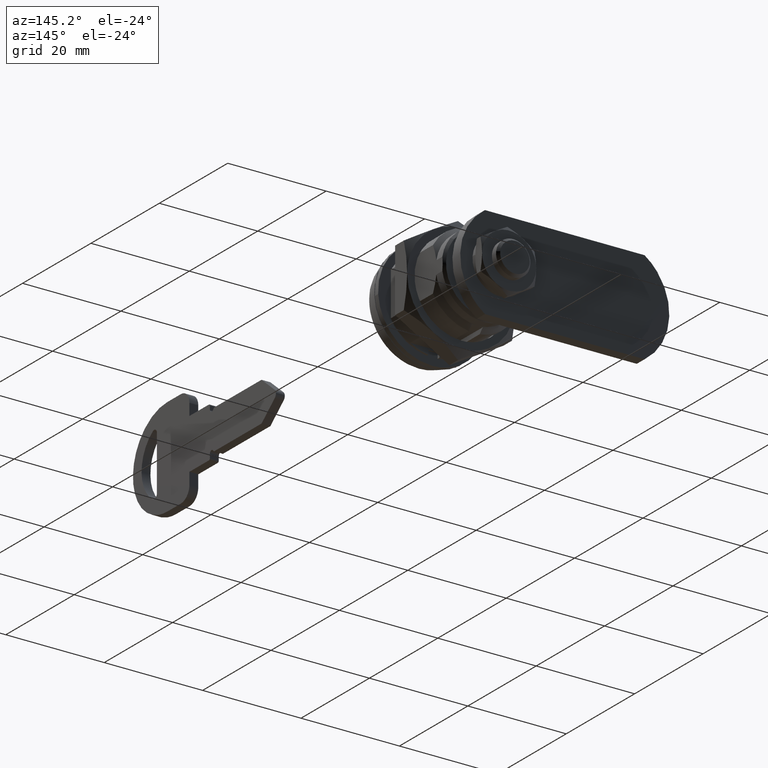
[diagram: clean part render]
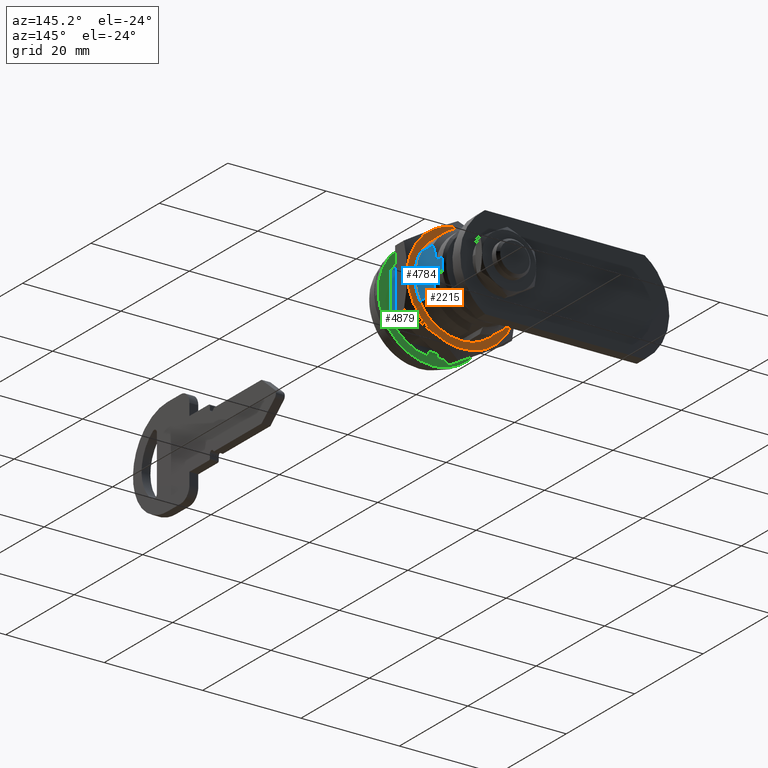
[diagram: same view with three faces highlighted in distinct colors, each labeled with its STEP entity id]
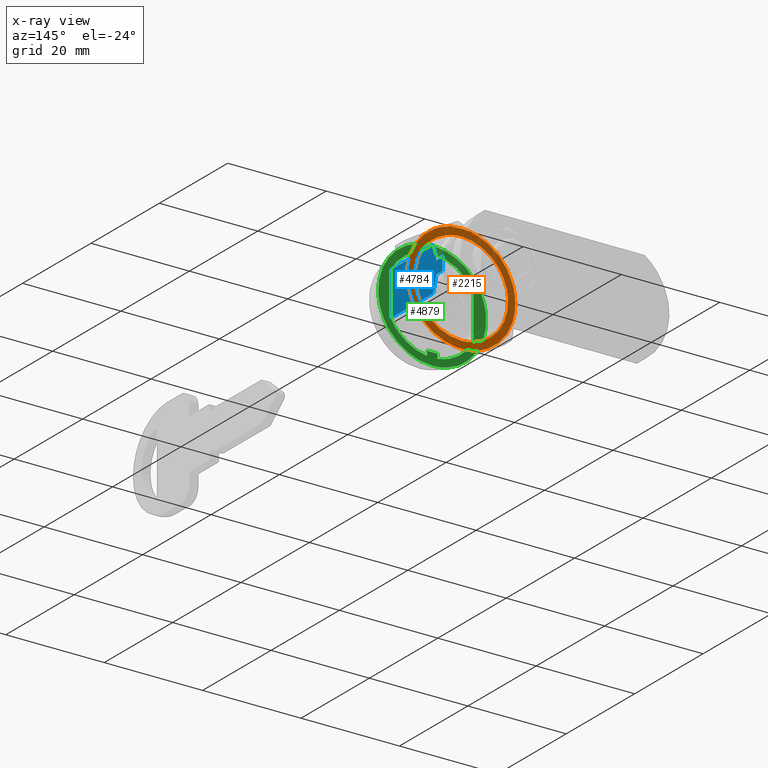
[diagram: x-ray of the same camera — body ghosted, the three highlighted faces saturated]
A machine part, auxiliary view with three faces highlighted in distinct colors.
The next image is the same camera in x-ray (body ghosted, the three faces saturated) — at least one of them is partly hidden behind the body in this view.
Their STEP definitions:

[orange] entity #2215 — the highlighted face is a freeform B-spline surface patch.
#1640=CARTESIAN_POINT('',(13.201256000000219,9.482280753717015,0.579958367195628));
#1641=VERTEX_POINT('',#1640);
#1647=CARTESIAN_POINT('',(13.201256000000219,0.0,9.500000000000000));
#1648=VERTEX_POINT('',#1647);
#1649=CARTESIAN_POINT('',(13.201256000000219,0.0,9.500000000000000));
#1650=CARTESIAN_POINT('',(13.201256000000217,8.936710240141311,9.500000000000000));
#1651=CARTESIAN_POINT('',(13.201256000000223,9.482280753717015,0.579958367195628));
#1659=(BOUNDED_CURVE()B_SPLINE_CURVE(2,(#1649,#1650,#1651),.UNSPECIFIED.,.F.,.U.)B_SPLINE_CURVE_WITH_KNOTS((3,3),(0.500000000000000,0.739333012435651),.UNSPECIFIED.)CURVE()GEOMETRIC_REPRESENTATION_ITEM()RATIONAL_B_SPLINE_CURVE((1.0,0.719603934477609,0.976072149247842))REPRESENTATION_ITEM(''));
#1660=EDGE_CURVE('',#1648,#1641,#1659,.T.);
#1662=CARTESIAN_POINT('',(13.201256000000219,-9.433590500442691,-1.121325229341343));
#1663=VERTEX_POINT('',#1662);
#1664=CARTESIAN_POINT('',(13.201256000000219,-9.433590500442691,-1.121325229341343));
#1665=CARTESIAN_POINT('',(13.201256000000221,-9.499999999999998,-0.562629136796364));
#1666=CARTESIAN_POINT('',(13.201256000000219,-9.500000000000000,0.0));
#1667=CARTESIAN_POINT('',(13.201256000000219,-9.500000000000000,9.500000000000000));
#1668=CARTESIAN_POINT('',(13.201256000000219,0.0,9.500000000000000));
#1676=(BOUNDED_CURVE()B_SPLINE_CURVE(2,(#1664,#1665,#1666,#1667,#1668),.UNSPECIFIED.,.F.,.U.)B_SPLINE_CURVE_WITH_KNOTS((3,2,3),(0.229562473511985,0.250000000000000,0.500000000000000),.UNSPECIFIED.)CURVE()GEOMETRIC_REPRESENTATION_ITEM()RATIONAL_B_SPLINE_CURVE((0.956026754180713,0.976055948329360,1.0,0.707106781186548,1.0))REPRESENTATION_ITEM(''));
#1677=EDGE_CURVE('',#1663,#1648,#1676,.T.);
#1721=CARTESIAN_POINT('',(13.201256000000219,0.0,-9.500000000000000));
#1722=VERTEX_POINT('',#1721);
#1723=CARTESIAN_POINT('',(13.201256000000219,0.0,-9.500000000000000));
#1724=CARTESIAN_POINT('',(13.201256000000217,-8.437657996353991,-9.500000000000000));
#1725=CARTESIAN_POINT('',(13.201256000000223,-9.433590500442691,-1.121325229341343));
#1733=(BOUNDED_CURVE()B_SPLINE_CURVE(2,(#1723,#1724,#1725),.UNSPECIFIED.,.F.,.U.)B_SPLINE_CURVE_WITH_KNOTS((3,3),(0.0,0.229562473511985),.UNSPECIFIED.)CURVE()GEOMETRIC_REPRESENTATION_ITEM()RATIONAL_B_SPLINE_CURVE((1.0,0.731050832857188,0.956026754180713))REPRESENTATION_ITEM(''));
#1734=EDGE_CURVE('',#1722,#1663,#1733,.T.);
#1736=CARTESIAN_POINT('',(13.201256000000214,9.482280753717015,0.579958367195628));
#1737=CARTESIAN_POINT('',(13.201256000000223,9.500000000000000,0.290249868276748));
#1738=CARTESIAN_POINT('',(13.201256000000219,9.500000000000000,0.0));
#1739=CARTESIAN_POINT('',(13.201256000000219,9.500000000000000,-9.500000000000000));
#1740=CARTESIAN_POINT('',(13.201256000000219,0.0,-9.500000000000000));
#1748=(BOUNDED_CURVE()B_SPLINE_CURVE(2,(#1736,#1737,#1738,#1739,#1740),.UNSPECIFIED.,.F.,.U.)B_SPLINE_CURVE_WITH_KNOTS((3,2,3),(0.739333012435651,0.750000000000000,1.0),.UNSPECIFIED.)CURVE()GEOMETRIC_REPRESENTATION_ITEM()RATIONAL_B_SPLINE_CURVE((0.976072149247842,0.987502846708939,1.0,0.707106781186548,1.0))REPRESENTATION_ITEM(''));
#1749=EDGE_CURVE('',#1641,#1722,#1748,.T.);
#1784=CARTESIAN_POINT('',(13.201256000000161,5.500000025275520,-9.526279427036000));
#1785=VERTEX_POINT('',#1784);
#1801=CARTESIAN_POINT('',(13.201256000000161,11.0,0.0));
#1802=VERTEX_POINT('',#1801);
#1818=CARTESIAN_POINT('',(13.201256000000161,5.500000025275517,-9.526279427035997));
#1819=CARTESIAN_POINT('',(13.201256000000155,11.0,-6.350852941628779));
#1820=CARTESIAN_POINT('',(13.201256000000161,11.0,0.0));
#1828=(BOUNDED_CURVE()B_SPLINE_CURVE(2,(#1818,#1819,#1820),.UNSPECIFIED.,.F.,.U.)CURVE()GEOMETRIC_REPRESENTATION_ITEM()QUASI_UNIFORM_CURVE()RATIONAL_B_SPLINE_CURVE((1.0,0.866025404447749,1.0))REPRESENTATION_ITEM(''));
#1829=EDGE_CURVE('',#1785,#1802,#1828,.T.);
#1866=CARTESIAN_POINT('',(13.201256000000161,5.500000025275459,9.526279427036030));
#1867=VERTEX_POINT('',#1866);
#1881=CARTESIAN_POINT('',(13.201256000000161,5.500000025275459,9.526279427036030));
#1882=CARTESIAN_POINT('',(13.201256000000157,11.0,6.350852941628824));
#1883=CARTESIAN_POINT('',(13.201256000000161,11.0,0.0));
#1891=(BOUNDED_CURVE()B_SPLINE_CURVE(2,(#1881,#1882,#1883),.UNSPECIFIED.,.F.,.U.)CURVE()GEOMETRIC_REPRESENTATION_ITEM()QUASI_UNIFORM_CURVE()RATIONAL_B_SPLINE_CURVE((1.0,0.866025404447748,1.0))REPRESENTATION_ITEM(''));
#1892=EDGE_CURVE('',#1867,#1802,#1891,.T.);
#1926=CARTESIAN_POINT('',(13.201256000000161,-5.499999617538220,9.526278720814419));
#1927=VERTEX_POINT('',#1926);
#1941=CARTESIAN_POINT('',(13.201256000000161,5.500000025275461,9.526279427036030));
#1942=CARTESIAN_POINT('',(13.201256000000157,1.734723E-015,12.701705941628825));
#1943=CARTESIAN_POINT('',(13.201256000000161,-5.499999617538220,9.526278720814419));
#1951=(BOUNDED_CURVE()B_SPLINE_CURVE(2,(#1941,#1942,#1943),.UNSPECIFIED.,.F.,.U.)CURVE()GEOMETRIC_REPRESENTATION_ITEM()QUASI_UNIFORM_CURVE()RATIONAL_B_SPLINE_CURVE((1.0,0.866025402457821,1.0))REPRESENTATION_ITEM(''));
#1952=EDGE_CURVE('',#1867,#1927,#1951,.T.);
#1973=CARTESIAN_POINT('',(13.201256000000161,-11.0,0.0));
#1974=VERTEX_POINT('',#1973);
#1991=CARTESIAN_POINT('',(13.201256000000161,-5.499999617538220,9.526278720814419));
#1992=CARTESIAN_POINT('',(13.201256000000161,-11.0,6.350852941628825));
#1993=CARTESIAN_POINT('',(13.201256000000161,-11.0,0.0));
#2001=(BOUNDED_CURVE()B_SPLINE_CURVE(2,(#1991,#1992,#1993),.UNSPECIFIED.,.F.,.U.)CURVE()GEOMETRIC_REPRESENTATION_ITEM()QUASI_UNIFORM_CURVE()RATIONAL_B_SPLINE_CURVE((1.0,0.866025404447747,1.0))REPRESENTATION_ITEM(''));
#2002=EDGE_CURVE('',#1927,#1974,#2001,.T.);
#2036=CARTESIAN_POINT('',(13.201256000000161,-5.500000025275520,-9.526279427036000));
#2037=VERTEX_POINT('',#2036);
#2051=CARTESIAN_POINT('',(13.201256000000161,-11.0,0.0));
#2052=CARTESIAN_POINT('',(13.201256000000157,-11.000000000000002,-6.350852941628777));
#2053=CARTESIAN_POINT('',(13.201256000000161,-5.500000025275522,-9.526279427035995));
#2061=(BOUNDED_CURVE()B_SPLINE_CURVE(2,(#2051,#2052,#2053),.UNSPECIFIED.,.F.,.U.)CURVE()GEOMETRIC_REPRESENTATION_ITEM()QUASI_UNIFORM_CURVE()RATIONAL_B_SPLINE_CURVE((1.0,0.866025404447749,1.0))REPRESENTATION_ITEM(''));
#2062=EDGE_CURVE('',#1974,#2037,#2061,.T.);
#2111=CARTESIAN_POINT('',(13.201256000000161,-5.500000025275522,-9.526279427035995));
#2112=CARTESIAN_POINT('',(13.201256000000157,-3.469447E-015,-12.701705941628870));
#2113=CARTESIAN_POINT('',(13.201256000000161,5.500000025275517,-9.526279427035997));
#2121=(BOUNDED_CURVE()B_SPLINE_CURVE(2,(#2111,#2112,#2113),.UNSPECIFIED.,.F.,.U.)CURVE()GEOMETRIC_REPRESENTATION_ITEM()QUASI_UNIFORM_CURVE()RATIONAL_B_SPLINE_CURVE((1.0,0.866025402457818,1.0))REPRESENTATION_ITEM(''));
#2122=EDGE_CURVE('',#2037,#1785,#2121,.T.);
#2196=CARTESIAN_POINT('',(13.201256000000161,12.098899957359730,12.098899965196340));
#2197=CARTESIAN_POINT('',(13.201256000000161,-12.098900547445711,12.098899965196340));
#2198=CARTESIAN_POINT('',(13.201256000000161,12.098899957359730,-12.098900547818520));
#2199=CARTESIAN_POINT('',(13.201256000000161,-12.098900547445711,-12.098900547818520));
#2200=B_SPLINE_SURFACE_WITH_KNOTS('',1,1,((#2196,#2198),(#2197,#2199)),.UNSPECIFIED.,.F.,.F.,.U.,(2,2),(2,2),(0.0,24.197800504805439),(0.0,24.197800513014862),.UNSPECIFIED.);
#2201=ORIENTED_EDGE('',*,*,#2122,.T.);
#2202=ORIENTED_EDGE('',*,*,#1829,.T.);
#2203=ORIENTED_EDGE('',*,*,#1892,.F.);
#2204=ORIENTED_EDGE('',*,*,#1952,.T.);
#2205=ORIENTED_EDGE('',*,*,#2002,.T.);
#2206=ORIENTED_EDGE('',*,*,#2062,.T.);
#2207=EDGE_LOOP('',(#2201,#2202,#2203,#2204,#2205,#2206));
#2208=FACE_OUTER_BOUND('',#2207,.T.);
#2209=ORIENTED_EDGE('',*,*,#1660,.T.);
#2210=ORIENTED_EDGE('',*,*,#1749,.T.);
#2211=ORIENTED_EDGE('',*,*,#1734,.T.);
#2212=ORIENTED_EDGE('',*,*,#1677,.T.);
#2213=EDGE_LOOP('',(#2209,#2210,#2211,#2212));
#2214=FACE_BOUND('',#2213,.T.);
#2215=ADVANCED_FACE('',(#2208,#2214),#2200,.T.);

[blue] entity #4784 — the highlighted face is a freeform B-spline surface patch.
#3378=CARTESIAN_POINT('',(19.751256000000101,-8.400000000000148,1.299999999997750));
#3379=VERTEX_POINT('',#3378);
#3393=CARTESIAN_POINT('',(19.751256000000101,-8.400000000000148,-1.299999999997750));
#3394=VERTEX_POINT('',#3393);
#3395=CARTESIAN_POINT('',(19.751256000000090,-8.400000000000148,1.299999999997751));
#3396=CARTESIAN_POINT('',(19.817347029204338,-8.400000000000148,0.867866347507695));
#3397=CARTESIAN_POINT('',(19.851173383121040,-8.400000000000148,0.435075726517367));
#3398=CARTESIAN_POINT('',(19.851297080433739,-8.400000000000148,-0.215140837012895));
#3399=CARTESIAN_POINT('',(19.842937276350089,-8.400000000000150,-0.432050752174140));
#3400=CARTESIAN_POINT('',(19.817848946498572,-8.400000000000148,-0.757671138118490));
#3401=CARTESIAN_POINT('',(19.807397100468950,-8.400000000000148,-0.866253804086032));
#3402=CARTESIAN_POINT('',(19.782351866536239,-8.400000000000148,-1.083503465478306));
#3403=CARTESIAN_POINT('',(19.767750034692849,-8.400000000000148,-1.192154388545050));
#3404=CARTESIAN_POINT('',(19.751256000000112,-8.400000000000148,-1.299999999997753));
#3405=B_SPLINE_CURVE_WITH_KNOTS('',3,(#3395,#3396,#3397,#3398,#3399,#3400,#3401,#3402,#3403,#3404),.UNSPECIFIED.,.F.,.U.,(4,2,2,2,4),(0.0,0.500000000000000,0.750000000000000,0.875000000000000,1.0),.UNSPECIFIED.);
#3406=EDGE_CURVE('',#3379,#3394,#3405,.T.);
#4712=CARTESIAN_POINT('',(3.944513299067102,-8.400000000000148,4.880632116375968));
#4713=CARTESIAN_POINT('',(3.944513299067102,-8.400000000000148,-4.880632195721818));
#4714=CARTESIAN_POINT('',(20.607997752540271,-8.400000000000148,4.880632116375968));
#4715=CARTESIAN_POINT('',(20.607997752540271,-8.400000000000148,-4.880632195721818));
#4716=B_SPLINE_SURFACE_WITH_KNOTS('',1,1,((#4712,#4714),(#4713,#4715)),.UNSPECIFIED.,.F.,.F.,.U.,(2,2),(2,2),(0.0,9.761264312097786),(0.0,16.663484453473171),.UNSPECIFIED.);
#4717=CARTESIAN_POINT('',(17.001256000000151,-8.400000000000148,4.437341546466475));
#4718=VERTEX_POINT('',#4717);
#4719=CARTESIAN_POINT('',(4.701256000000150,-8.400000000000148,4.437341546466475));
#4720=VERTEX_POINT('',#4719);
#4721=CARTESIAN_POINT('',(17.001256000000151,-8.400000000000148,4.437341546466475));
#4722=CARTESIAN_POINT('',(4.701256000000150,-8.400000000000148,4.437341546466475));
#4723=QUASI_UNIFORM_CURVE('',1,(#4721,#4722),.UNSPECIFIED.,.F.,.U.);
#4724=EDGE_CURVE('',#4718,#4720,#4723,.T.);
#4725=ORIENTED_EDGE('',*,*,#4724,.T.);
#4726=CARTESIAN_POINT('',(4.701256000000150,-8.400000000000148,-4.437341546466475));
#4727=VERTEX_POINT('',#4726);
#4728=CARTESIAN_POINT('',(4.701256000000150,-8.400000000000148,-4.437341546466475));
#4729=CARTESIAN_POINT('',(4.701256000000150,-8.400000000000148,4.437341546466475));
#4730=QUASI_UNIFORM_CURVE('',1,(#4728,#4729),.UNSPECIFIED.,.F.,.U.);
#4731=EDGE_CURVE('',#4727,#4720,#4730,.T.);
#4732=ORIENTED_EDGE('',*,*,#4731,.F.);
#4733=CARTESIAN_POINT('',(17.001256000000151,-8.400000000000148,-4.437341546466475));
#4734=VERTEX_POINT('',#4733);
#4735=CARTESIAN_POINT('',(17.001256000000151,-8.400000000000148,-4.437341546466475));
#4736=CARTESIAN_POINT('',(4.701256000000150,-8.400000000000148,-4.437341546466475));
#4737=QUASI_UNIFORM_CURVE('',1,(#4735,#4736),.UNSPECIFIED.,.F.,.U.);
#4738=EDGE_CURVE('',#4734,#4727,#4737,.T.);
#4739=ORIENTED_EDGE('',*,*,#4738,.F.);
#4740=CARTESIAN_POINT('',(18.001256000000101,-8.400000000000148,-1.299999999997750));
#4741=VERTEX_POINT('',#4740);
#4742=CARTESIAN_POINT('',(18.001256000000101,-8.400000000000148,-1.299999999997750));
#4743=CARTESIAN_POINT('',(17.950899793295019,-8.400000000000148,-1.629234425564295));
#4744=CARTESIAN_POINT('',(17.882526742040451,-8.400000000000151,-1.954113575777129));
#4745=CARTESIAN_POINT('',(17.701924665431349,-8.400000000000148,-2.644911618678313));
#4746=CARTESIAN_POINT('',(17.584655310438460,-8.400000000000148,-3.009612109136660));
#4747=CARTESIAN_POINT('',(17.383249689112581,-8.400000000000148,-3.550498328822954));
#4748=CARTESIAN_POINT('',(17.311859755677670,-8.400000000000148,-3.729765237565275));
#4749=CARTESIAN_POINT('',(17.161402055063341,-8.400000000000148,-4.086443087201166));
#4750=CARTESIAN_POINT('',(17.082772896074349,-8.400000000000148,-4.262820269572226));
#4751=CARTESIAN_POINT('',(17.001256000000129,-8.400000000000148,-4.437341546466465));
#4752=B_SPLINE_CURVE_WITH_KNOTS('',3,(#4742,#4743,#4744,#4745,#4746,#4747,#4748,#4749,#4750,#4751),.UNSPECIFIED.,.F.,.U.,(4,2,2,2,4),(0.641423269057968,0.750000000000000,0.875000000000000,0.937500000000000,1.0),.UNSPECIFIED.);
#4753=EDGE_CURVE('',#4741,#4734,#4752,.T.);
#4754=ORIENTED_EDGE('',*,*,#4753,.F.);
#4755=CARTESIAN_POINT('',(19.751256000000101,-8.400000000000148,-1.299999999997750));
#4756=CARTESIAN_POINT('',(18.001256000000101,-8.400000000000148,-1.299999999997750));
#4757=QUASI_UNIFORM_CURVE('',1,(#4755,#4756),.UNSPECIFIED.,.F.,.U.);
#4758=EDGE_CURVE('',#3394,#4741,#4757,.T.);
#4759=ORIENTED_EDGE('',*,*,#4758,.F.);
#4760=ORIENTED_EDGE('',*,*,#3406,.F.);
#4761=CARTESIAN_POINT('',(18.001256000000101,-8.400000000000148,1.299999999997750));
#4762=VERTEX_POINT('',#4761);
#4763=CARTESIAN_POINT('',(18.001256000000101,-8.400000000000148,1.299999999997750));
#4764=CARTESIAN_POINT('',(19.751256000000101,-8.400000000000148,1.299999999997750));
#4765=QUASI_UNIFORM_CURVE('',1,(#4763,#4764),.UNSPECIFIED.,.F.,.U.);
#4766=EDGE_CURVE('',#4762,#3379,#4765,.T.);
#4767=ORIENTED_EDGE('',*,*,#4766,.F.);
#4768=CARTESIAN_POINT('',(17.001256000000151,-8.400000000000148,4.437341546466475));
#4769=CARTESIAN_POINT('',(17.163104845268261,-8.400000000000148,4.090836273480227));
#4770=CARTESIAN_POINT('',(17.313456497851771,-8.400000000000148,3.737480898169443));
#4771=CARTESIAN_POINT('',(17.482359384390492,-8.400000000000148,3.284444501514008));
#4772=CARTESIAN_POINT('',(17.515200471603759,-8.400000000000150,3.193202702762590));
#4773=CARTESIAN_POINT('',(17.578464931297109,-8.400000000000148,3.010573294508382));
#4774=CARTESIAN_POINT('',(17.669875991830981,-8.400000000000150,2.736046968186948));
#4775=CARTESIAN_POINT('',(17.750361278898179,-8.400000000000148,2.459695680687008));
#4776=CARTESIAN_POINT('',(17.882925954715429,-8.400000000000150,1.952506120613162));
#4777=CARTESIAN_POINT('',(17.951121813224368,-8.400000000000148,1.627761504985939));
#4778=CARTESIAN_POINT('',(18.001256000000101,-8.400000000000148,1.299999999997750));
#4779=B_SPLINE_CURVE_WITH_KNOTS('',3,(#4768,#4769,#4770,#4771,#4772,#4773,#4774,#4775,#4776,#4777,#4778),.UNSPECIFIED.,.F.,.U.,(4,2,2,1,2,4),(0.0,0.125000000000000,0.156250000000000,0.187500000000000,0.250000000000000,0.358741394237841),.UNSPECIFIED.);
#4780=EDGE_CURVE('',#4718,#4762,#4779,.T.);
#4781=ORIENTED_EDGE('',*,*,#4780,.F.);
#4782=EDGE_LOOP('',(#4725,#4732,#4739,#4754,#4759,#4760,#4767,#4781));
#4783=FACE_OUTER_BOUND('',#4782,.T.);
#4784=ADVANCED_FACE('',(#4783),#4716,.T.);

[green] entity #4879 — the highlighted face is a freeform B-spline surface patch.
#3127=CARTESIAN_POINT('',(4.701256000000090,10.923104789993751,1.298376581279699));
#3128=VERTEX_POINT('',#3127);
#3129=CARTESIAN_POINT('',(4.701256000000091,0.0,-11.0));
#3130=VERTEX_POINT('',#3129);
#3131=CARTESIAN_POINT('',(4.701256000000090,10.923104789993753,1.298376581279699));
#3132=CARTESIAN_POINT('',(4.701256000000090,11.000000000000004,0.651465316226952));
#3133=CARTESIAN_POINT('',(4.701256000000091,11.0,0.0));
#3134=CARTESIAN_POINT('',(4.701256000000091,11.0,-11.0));
#3135=CARTESIAN_POINT('',(4.701256000000091,0.0,-11.0));
#3143=(BOUNDED_CURVE()B_SPLINE_CURVE(2,(#3131,#3132,#3133,#3134,#3135),.UNSPECIFIED.,.F.,.U.)B_SPLINE_CURVE_WITH_KNOTS((3,2,3),(0.229562473513931,0.250000000000000,0.500000000000000),.UNSPECIFIED.)CURVE()GEOMETRIC_REPRESENTATION_ITEM()RATIONAL_B_SPLINE_CURVE((0.956026754184528,0.976055948331641,1.0,0.707106781186548,1.0))REPRESENTATION_ITEM(''));
#3144=EDGE_CURVE('',#3128,#3130,#3143,.T.);
#3146=CARTESIAN_POINT('',(4.701256000000091,-10.979482782634280,-0.671533934985738));
#3147=VERTEX_POINT('',#3146);
#3148=CARTESIAN_POINT('',(4.701256000000091,0.0,-11.0));
#3149=CARTESIAN_POINT('',(4.701256000000090,-10.347766735769392,-10.999999999999998));
#3150=CARTESIAN_POINT('',(4.701256000000091,-10.979482782634278,-0.671533934985738));
#3158=(BOUNDED_CURVE()B_SPLINE_CURVE(2,(#3148,#3149,#3150),.UNSPECIFIED.,.F.,.U.)B_SPLINE_CURVE_WITH_KNOTS((3,3),(0.500000000000000,0.739332962238752),.UNSPECIFIED.)CURVE()GEOMETRIC_REPRESENTATION_ITEM()RATIONAL_B_SPLINE_CURVE((1.0,0.719603993286934,0.976072041666308))REPRESENTATION_ITEM(''));
#3159=EDGE_CURVE('',#3130,#3147,#3158,.T.);
#3226=CARTESIAN_POINT('',(4.701256000000091,0.0,11.0));
#3227=VERTEX_POINT('',#3226);
#3228=CARTESIAN_POINT('',(4.701256000000091,0.0,11.0));
#3229=CARTESIAN_POINT('',(4.701256000000091,9.769919785365321,11.0));
#3230=CARTESIAN_POINT('',(4.701256000000090,10.923104789993753,1.298376581279699));
#3238=(BOUNDED_CURVE()B_SPLINE_CURVE(2,(#3228,#3229,#3230),.UNSPECIFIED.,.F.,.U.)B_SPLINE_CURVE_WITH_KNOTS((3,3),(0.0,0.229562473513931),.UNSPECIFIED.)CURVE()GEOMETRIC_REPRESENTATION_ITEM()RATIONAL_B_SPLINE_CURVE((1.0,0.731050832854907,0.956026754184528))REPRESENTATION_ITEM(''));
#3239=EDGE_CURVE('',#3227,#3128,#3238,.T.);
#3273=CARTESIAN_POINT('',(4.701256000000091,-10.979482782634282,-0.671533934985738));
#3274=CARTESIAN_POINT('',(4.701256000000091,-11.000000000000002,-0.336080396387077));
#3275=CARTESIAN_POINT('',(4.701256000000091,-11.0,0.0));
#3276=CARTESIAN_POINT('',(4.701256000000091,-11.0,11.0));
#3277=CARTESIAN_POINT('',(4.701256000000091,0.0,11.0));
#3285=(BOUNDED_CURVE()B_SPLINE_CURVE(2,(#3273,#3274,#3275,#3276,#3277),.UNSPECIFIED.,.F.,.U.)B_SPLINE_CURVE_WITH_KNOTS((3,2,3),(0.739332962238753,0.750000000000000,1.0),.UNSPECIFIED.)CURVE()GEOMETRIC_REPRESENTATION_ITEM()RATIONAL_B_SPLINE_CURVE((0.976072041666310,0.987502787899614,1.0,0.707106781186548,1.0))REPRESENTATION_ITEM(''));
#3286=EDGE_CURVE('',#3147,#3227,#3285,.T.);
#3967=CARTESIAN_POINT('',(4.701256000000150,1.100000000000000,-8.500000000000000));
#3968=VERTEX_POINT('',#3967);
#3974=CARTESIAN_POINT('',(4.701256000000150,1.100000000000000,-9.436100889668360));
#3975=VERTEX_POINT('',#3974);
#3976=CARTESIAN_POINT('',(4.701256000000150,1.100000000000000,-8.500000000000000));
#3977=CARTESIAN_POINT('',(4.701256000000150,1.100000000000000,-9.436100889668360));
#3978=QUASI_UNIFORM_CURVE('',1,(#3976,#3977),.UNSPECIFIED.,.F.,.U.);
#3979=EDGE_CURVE('',#3968,#3975,#3978,.T.);
#4003=CARTESIAN_POINT('',(4.701256000000150,-1.100000000000000,-8.500000000000000));
#4004=VERTEX_POINT('',#4003);
#4010=CARTESIAN_POINT('',(4.701256000000150,-1.100000000000000,-8.500000000000000));
#4011=CARTESIAN_POINT('',(4.701256000000150,1.100000000000000,-8.500000000000000));
#4012=QUASI_UNIFORM_CURVE('',1,(#4010,#4011),.UNSPECIFIED.,.F.,.U.);
#4013=EDGE_CURVE('',#4004,#3968,#4012,.T.);
#4031=CARTESIAN_POINT('',(4.701256000000150,-1.100000000000000,-9.436100889668360));
#4032=VERTEX_POINT('',#4031);
#4038=CARTESIAN_POINT('',(4.701256000000150,-1.100000000000000,-9.436100889668360));
#4039=CARTESIAN_POINT('',(4.701256000000150,-1.100000000000000,-8.500000000000000));
#4040=QUASI_UNIFORM_CURVE('',1,(#4038,#4039),.UNSPECIFIED.,.F.,.U.);
#4041=EDGE_CURVE('',#4032,#4004,#4040,.T.);
#4646=CARTESIAN_POINT('',(4.701256000000091,8.400000000000148,-4.437341546466475));
#4647=VERTEX_POINT('',#4646);
#4653=CARTESIAN_POINT('',(4.701256000000150,8.400000000000148,4.437341546466475));
#4654=VERTEX_POINT('',#4653);
#4655=CARTESIAN_POINT('',(4.701256000000091,8.400000000000148,-4.437341546466475));
#4656=CARTESIAN_POINT('',(4.701256000000150,8.400000000000148,4.437341546466475));
#4657=QUASI_UNIFORM_CURVE('',1,(#4655,#4656),.UNSPECIFIED.,.F.,.U.);
#4658=EDGE_CURVE('',#4647,#4654,#4657,.T.);
#4719=CARTESIAN_POINT('',(4.701256000000150,-8.400000000000148,4.437341546466475));
#4720=VERTEX_POINT('',#4719);
#4726=CARTESIAN_POINT('',(4.701256000000150,-8.400000000000148,-4.437341546466475));
#4727=VERTEX_POINT('',#4726);
#4728=CARTESIAN_POINT('',(4.701256000000150,-8.400000000000148,-4.437341546466475));
#4729=CARTESIAN_POINT('',(4.701256000000150,-8.400000000000148,4.437341546466475));
#4730=QUASI_UNIFORM_CURVE('',1,(#4728,#4729),.UNSPECIFIED.,.F.,.U.);
#4731=EDGE_CURVE('',#4727,#4720,#4730,.T.);
#4820=CARTESIAN_POINT('',(4.701256000000091,-12.098632640177460,12.098899957359730));
#4821=CARTESIAN_POINT('',(4.701256000000091,-12.098632640177460,-12.098900547445711));
#4822=CARTESIAN_POINT('',(4.701256000000091,12.098699909979549,12.098899957359730));
#4823=CARTESIAN_POINT('',(4.701256000000091,12.098699909979560,-12.098900547445711));
#4824=B_SPLINE_SURFACE_WITH_KNOTS('',1,1,((#4820,#4822),(#4821,#4823)),.UNSPECIFIED.,.F.,.F.,.U.,(2,2),(2,2),(0.0,24.197800504805439),(0.0,24.197332550157011),.UNSPECIFIED.);
#4825=ORIENTED_EDGE('',*,*,#3286,.F.);
#4826=ORIENTED_EDGE('',*,*,#3159,.F.);
#4827=ORIENTED_EDGE('',*,*,#3144,.F.);
#4828=ORIENTED_EDGE('',*,*,#3239,.F.);
#4829=EDGE_LOOP('',(#4825,#4826,#4827,#4828));
#4830=FACE_OUTER_BOUND('',#4829,.T.);
#4831=CARTESIAN_POINT('',(4.701256000000091,8.400000000000148,-4.437341546466475));
#4832=CARTESIAN_POINT('',(4.701256000000091,6.065136577434166,-8.857297176244993));
#4833=CARTESIAN_POINT('',(4.701256000000150,1.100000000000000,-9.436100889668360));
#4841=(BOUNDED_CURVE()B_SPLINE_CURVE(2,(#4831,#4832,#4833),.UNSPECIFIED.,.F.,.U.)CURVE()GEOMETRIC_REPRESENTATION_ITEM()QUASI_UNIFORM_CURVE()RATIONAL_B_SPLINE_CURVE((1.0,0.884965850678060,1.0))REPRESENTATION_ITEM(''));
#4842=EDGE_CURVE('',#4647,#3975,#4841,.T.);
#4843=ORIENTED_EDGE('',*,*,#4842,.T.);
#4844=ORIENTED_EDGE('',*,*,#3979,.F.);
#4845=ORIENTED_EDGE('',*,*,#4013,.F.);
#4846=ORIENTED_EDGE('',*,*,#4041,.F.);
#4847=CARTESIAN_POINT('',(4.701256000000150,-1.100000000000000,-9.436100889668360));
#4848=CARTESIAN_POINT('',(4.701256000000091,-6.065136577434164,-8.857297176244995));
#4849=CARTESIAN_POINT('',(4.701256000000150,-8.400000000000148,-4.437341546466475));
#4857=(BOUNDED_CURVE()B_SPLINE_CURVE(2,(#4847,#4848,#4849),.UNSPECIFIED.,.F.,.U.)CURVE()GEOMETRIC_REPRESENTATION_ITEM()QUASI_UNIFORM_CURVE()RATIONAL_B_SPLINE_CURVE((1.0,0.884965850678060,1.0))REPRESENTATION_ITEM(''));
#4858=EDGE_CURVE('',#4032,#4727,#4857,.T.);
#4859=ORIENTED_EDGE('',*,*,#4858,.T.);
#4860=ORIENTED_EDGE('',*,*,#4731,.T.);
#4861=CARTESIAN_POINT('',(4.701256000000150,-8.400000000000148,4.437341546466475));
#4862=CARTESIAN_POINT('',(4.701256000000091,-5.725625631972338,9.500000000000000));
#4863=CARTESIAN_POINT('',(4.701256000000091,0.0,9.500000000000000));
#4864=CARTESIAN_POINT('',(4.701256000000091,5.725625631972334,9.500000000000000));
#4865=CARTESIAN_POINT('',(4.701256000000150,8.400000000000148,4.437341546466475));
#4873=(BOUNDED_CURVE()B_SPLINE_CURVE(2,(#4861,#4862,#4863,#4864,#4865),.UNSPECIFIED.,.F.,.U.)B_SPLINE_CURVE_WITH_KNOTS((3,2,3),(0.0,0.500000000000000,1.0),.UNSPECIFIED.)CURVE()GEOMETRIC_REPRESENTATION_ITEM()RATIONAL_B_SPLINE_CURVE((1.0,0.856472002997931,1.0,0.856472002997931,1.0))REPRESENTATION_ITEM(''));
#4874=EDGE_CURVE('',#4720,#4654,#4873,.T.);
#4875=ORIENTED_EDGE('',*,*,#4874,.T.);
#4876=ORIENTED_EDGE('',*,*,#4658,.F.);
#4877=EDGE_LOOP('',(#4843,#4844,#4845,#4846,#4859,#4860,#4875,#4876));
#4878=FACE_BOUND('',#4877,.T.);
#4879=ADVANCED_FACE('',(#4830,#4878),#4824,.T.);